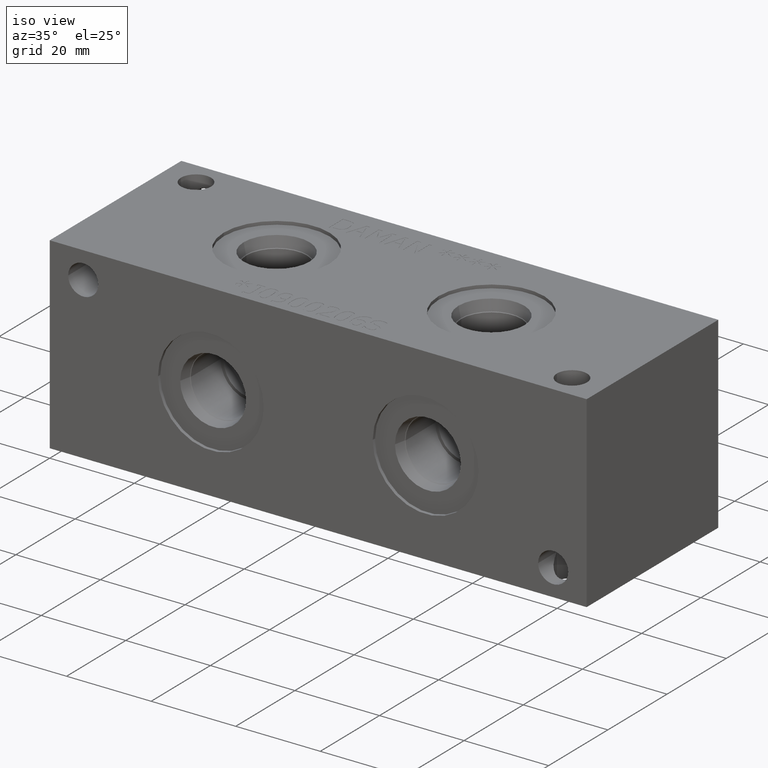
[diagram: clean part render]
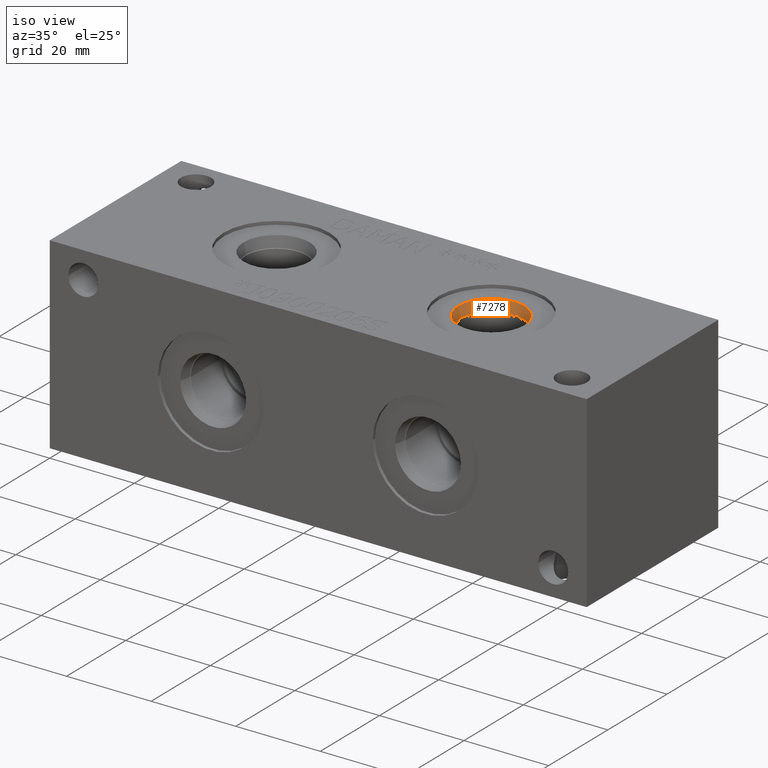
[diagram: same view with one face highlighted and labeled with its STEP entity id]
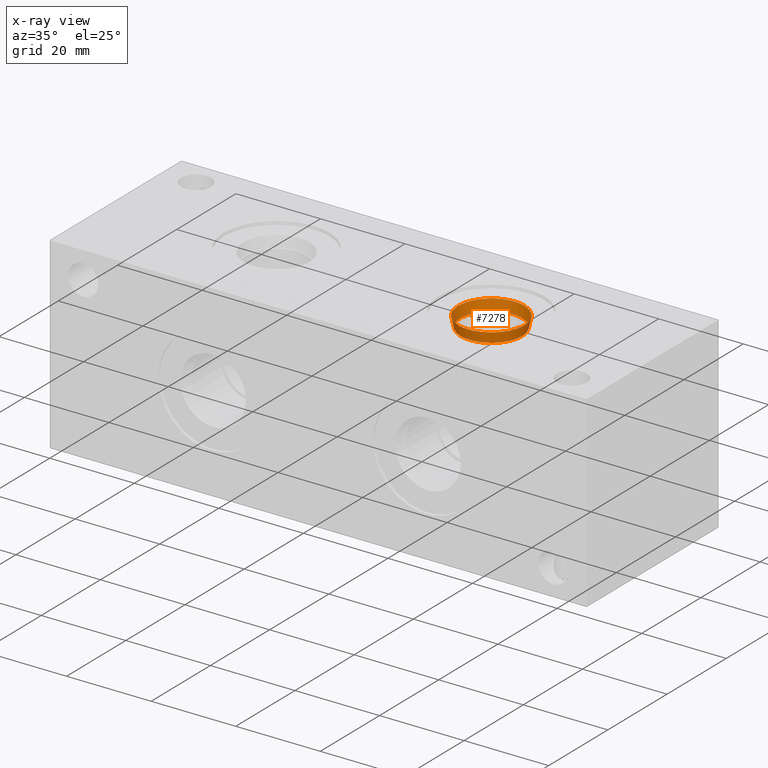
[diagram: x-ray of the same camera — body ghosted, the highlighted face saturated]
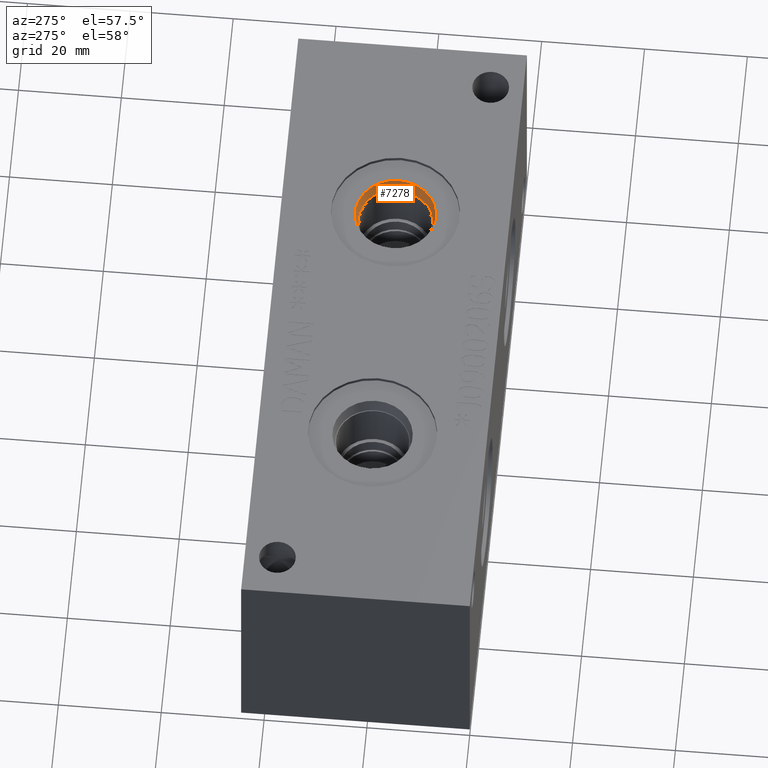
[diagram: same view with one face highlighted and labeled with its STEP entity id]
A machine part, iso view. The second image highlights one B-rep face of the part: STEP entity #7278.
The next image is the same camera in x-ray: the body ghosted, the highlighted face saturated — about 0% of this face is hidden behind the body in this view.
A second angle (auxiliary view) of the same face is appended — the face is thin or edge-on in the first view.
In plain terms, the highlighted conical surface has half-angle 12.038 deg.
Its self-contained STEP definition (entity closure, byte-faithful):
#33=CONICAL_SURFACE('',#7578,7.5311,0.210103251840967);
#104=CIRCLE('',#7576,7.79780000000001);
#105=CIRCLE('',#7577,7.79780000000001);
#106=CIRCLE('',#7579,7.2644);
#107=CIRCLE('',#7580,7.2644);
#926=FACE_OUTER_BOUND('',#1335,.T.);
#1335=EDGE_LOOP('',(#6208,#6209,#6210,#6211,#6212,#6213));
#2013=LINE('',#12554,#2669);
#2669=VECTOR('',#8794,7.5311);
#3315=VERTEX_POINT('',#12548);
#3316=VERTEX_POINT('',#12549);
#3317=VERTEX_POINT('',#12553);
#3318=VERTEX_POINT('',#12555);
#4294=EDGE_CURVE('',#3315,#3316,#104,.T.);
#4295=EDGE_CURVE('',#3316,#3315,#105,.T.);
#4296=EDGE_CURVE('',#3316,#3317,#2013,.T.);
#4297=EDGE_CURVE('',#3317,#3318,#106,.T.);
#4298=EDGE_CURVE('',#3318,#3317,#107,.T.);
#6208=ORIENTED_EDGE('',*,*,#4294,.F.);
#6209=ORIENTED_EDGE('',*,*,#4295,.F.);
#6210=ORIENTED_EDGE('',*,*,#4296,.T.);
#6211=ORIENTED_EDGE('',*,*,#4297,.T.);
#6212=ORIENTED_EDGE('',*,*,#4298,.T.);
#6213=ORIENTED_EDGE('',*,*,#4296,.F.);
#7278=ADVANCED_FACE('',(#926),#33,.F.);
#7576=AXIS2_PLACEMENT_3D('',#12550,#8788,#8789);
#7577=AXIS2_PLACEMENT_3D('',#12551,#8790,#8791);
#7578=AXIS2_PLACEMENT_3D('',#12552,#8792,#8793);
#7579=AXIS2_PLACEMENT_3D('',#12556,#8795,#8796);
#7580=AXIS2_PLACEMENT_3D('',#12557,#8797,#8798);
#8788=DIRECTION('center_axis',(0.,0.,-1.));
#8789=DIRECTION('ref_axis',(1.,0.,0.));
#8790=DIRECTION('center_axis',(0.,0.,-1.));
#8791=DIRECTION('ref_axis',(1.,0.,0.));
#8792=DIRECTION('center_axis',(0.,0.,1.));
#8793=DIRECTION('ref_axis',(1.,0.,0.));
#8794=DIRECTION('',(0.208560882227198,-2.55413416846886E-17,-0.978009385642394));
#8795=DIRECTION('center_axis',(0.,0.,-1.));
#8796=DIRECTION('ref_axis',(1.,0.,0.));
#8797=DIRECTION('center_axis',(0.,0.,-1.));
#8798=DIRECTION('ref_axis',(1.,0.,0.));
#12548=CARTESIAN_POINT('',(96.6978,22.225,43.6626));
#12549=CARTESIAN_POINT('',(81.1022,22.225,43.6626));
#12550=CARTESIAN_POINT('Origin',(88.9,22.225,43.6626));
#12551=CARTESIAN_POINT('Origin',(88.9,22.225,43.6626));
#12552=CARTESIAN_POINT('Origin',(88.9,22.225,42.4119575));
#12553=CARTESIAN_POINT('',(81.6356,22.225,41.161315));
#12554=CARTESIAN_POINT('',(81.3689,22.225,42.4119575));
#12555=CARTESIAN_POINT('',(96.1644,22.225,41.161315));
#12556=CARTESIAN_POINT('Origin',(88.9,22.225,41.161315));
#12557=CARTESIAN_POINT('Origin',(88.9,22.225,41.161315));